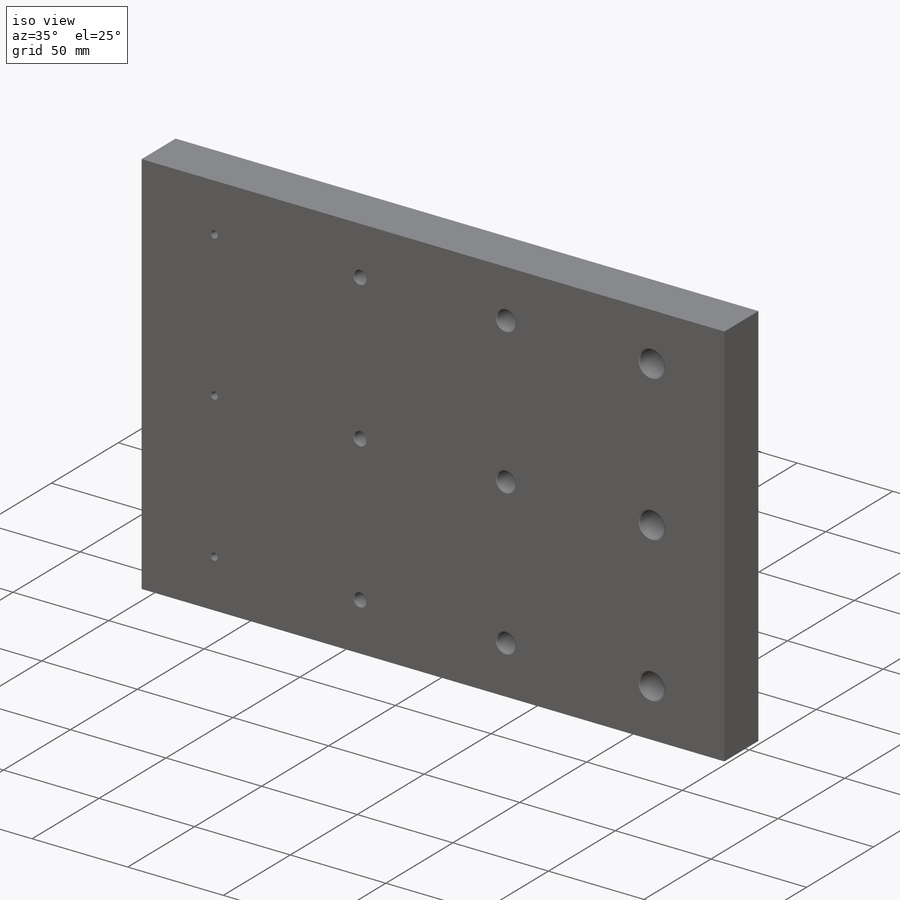
[diagram: iso view]
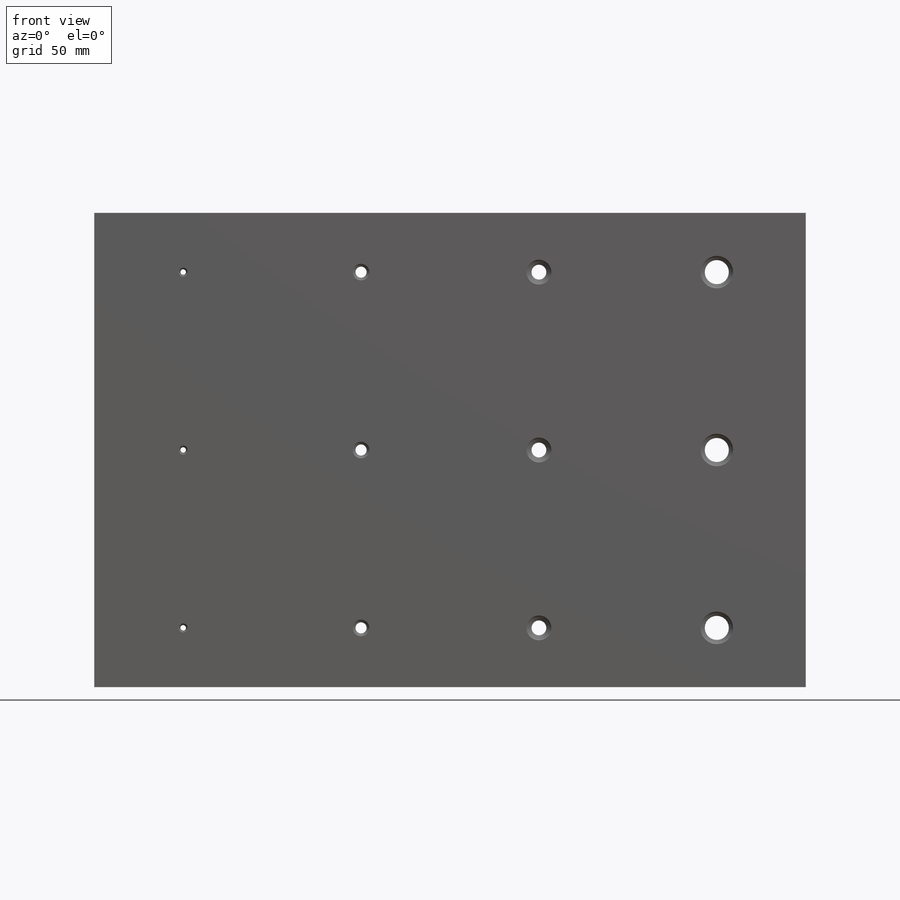
[diagram: front view]
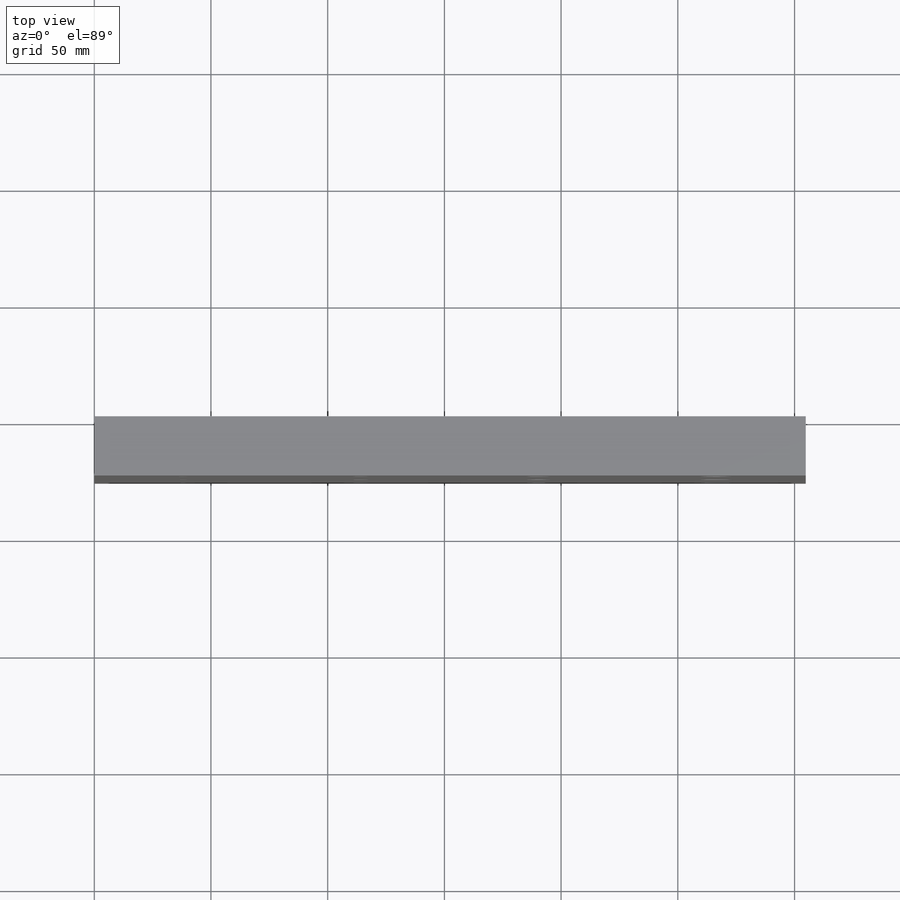
[diagram: top view]
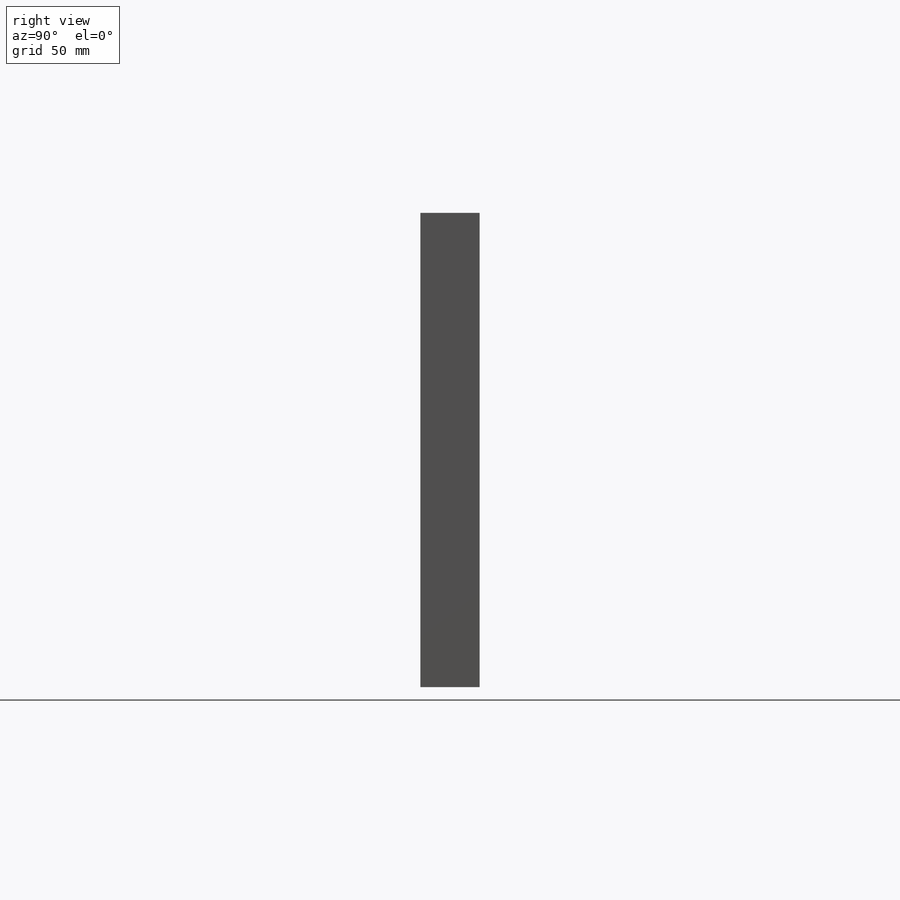
[diagram: right view]
SOLIDWORKS PART (.sldprt)
format: sldprt  version: not decoded by parser v0  size: 455,168 bytes
history: native  units: mm
features: sketch x17, hole x8, material x1, extrude x1 + 1 further entry (+13 scaffold rows collapsed)
feature tree (41):
  scaffold x13  (default folders/planes/origin — collapsed)
  material  "6061-T6 Al"
  "Origin"  ID=-1
  sketch  "Sketch1"  dims[D1=203.2mm D2=304.8mm]
  extrude  "Boss-Extrude1"  Depth=25.4mm
  hole  "3/32 (0.09375) Diameter Hole1"  Diameter=2.38125mm Depth=25.4mm
  sketch  "Sketch3"  dims[D1=76.2mm D2=76.2mm]
  sketch  "Sketch2"  dims[hole-wizard template sketch: 60 standard entries collapsed; hole parameters kept: c18.Thru Hole Depth=25.4mm]
  hole  "CBORE for #4 Socket Head Cap Screw1"  Diameter=3.175mm Depth=6.35mm
  sketch  "Sketch5"
  sketch  "Sketch4"  dims[hole-wizard template sketch: 35 standard entries collapsed; hole parameters above]
  hole  "CBORE for 1/4 Socket Head Cap Screw1"  Diameter=6.35mm Depth=9.525mm
  sketch  "Sketch7"
  sketch  "Sketch6"  dims[hole-wizard template sketch: 26 standard entries collapsed; hole parameters kept: c8.Hole Dia.=6.35mm c8.Hole Depth=9.525mm c8.C'Bore Dia.=6.3754mm c8.C'Bore Depth=2.54mm c8.Near C'Sink Dia.=7.112mm c8.D6=~4.399409mm c8.Near C'Sink Angle=90.0deg c8.D7=~14.816244mm c8.Drill Angle=118.0deg]
  hole  "CBORE for 3/8 Socket Head Cap Screw1"  Diameter=9.525mm Depth=15.24mm
  sketch  "Sketch9"
  sketch  "Sketch8"  dims[hole-wizard template sketch: 28 standard entries collapsed; hole parameters kept: c8.C'Bore Dia.=9.5758mm c8.C'Bore Depth=3.302mm c8.Near C'Sink Dia.=10.668mm c8.D6=~4.399409mm c8.Near C'Sink Angle=90.0deg c8.D7=~14.816244mm c8.Drill Angle=118.0deg]
  hole  "CBORE for 1/2 Socket Head Cap Screw1"  Diameter=12.7mm Depth=19.05mm
  sketch  "Sketch11"
  sketch  "Sketch10"  dims[hole-wizard template sketch: 26 standard entries collapsed; hole parameters kept: c8.Hole Dia.=12.7mm c8.Hole Depth=19.05mm c8.C'Bore Dia.=12.7508mm c8.C'Bore Depth=3.81mm c8.Near C'Sink Dia.=13.97mm c8.D6=~4.399409mm c8.Near C'Sink Angle=90.0deg c8.D7=~14.816244mm c8.Drill Angle=118.0deg]
  hole  "3/16 (0.1875) Diameter Hole1"  Diameter=4.7625mm Depth=25.4mm
  sketch  "Sketch13"
  sketch  "Sketch12"  dims[hole-wizard template sketch: 60 standard entries collapsed; hole parameters kept: c18.Thru Hole Depth=25.4mm]
  hole  "1/4 (0.25) Diameter Hole1"  Diameter=6.35mm Depth=25.4mm
  sketch  "Sketch15"
  sketch  "Sketch14"  dims[hole-wizard template sketch: 60 standard entries collapsed; hole parameters kept: c18.Thru Hole Depth=25.4mm]
  hole  "13/32 (0.40625) Diameter Hole1"  Diameter=10.31875mm Depth=25.4mm
  sketch  "Sketch17"
  sketch  "Sketch16"  dims[hole-wizard template sketch: 60 standard entries collapsed; hole parameters kept: c18.Thru Hole Depth=25.4mm]
decode coverage: 19 of 26 modeling features carry decoded parameters; 1 rows unclassified (native names shown)
note: ~ marks probable driven/reference dimensions
summary: Diameter pulled from absorbed wizard sketch
note: suppression state not decoded; provenance and decode notes live in map.json
